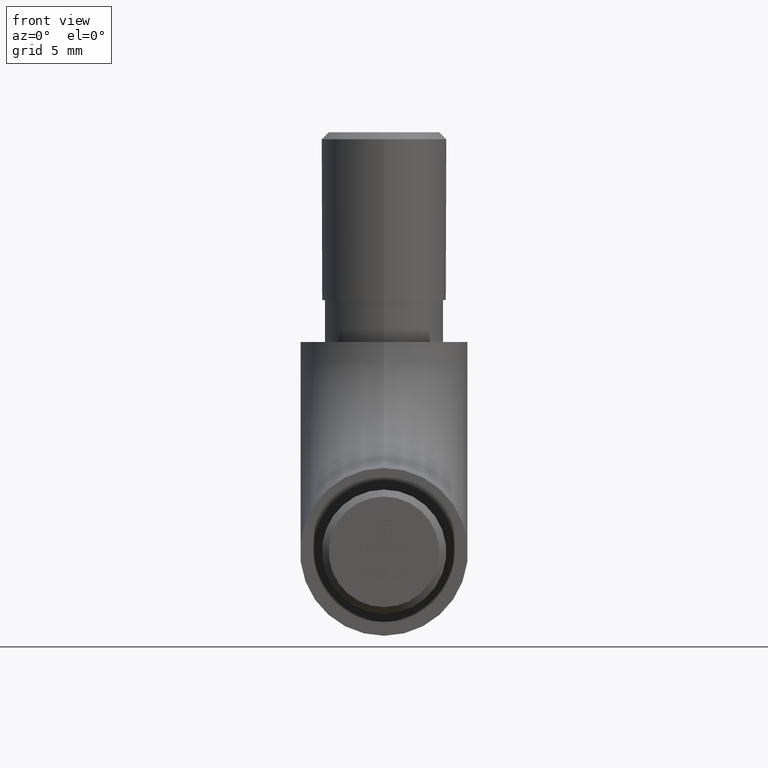
[diagram: clean part render]
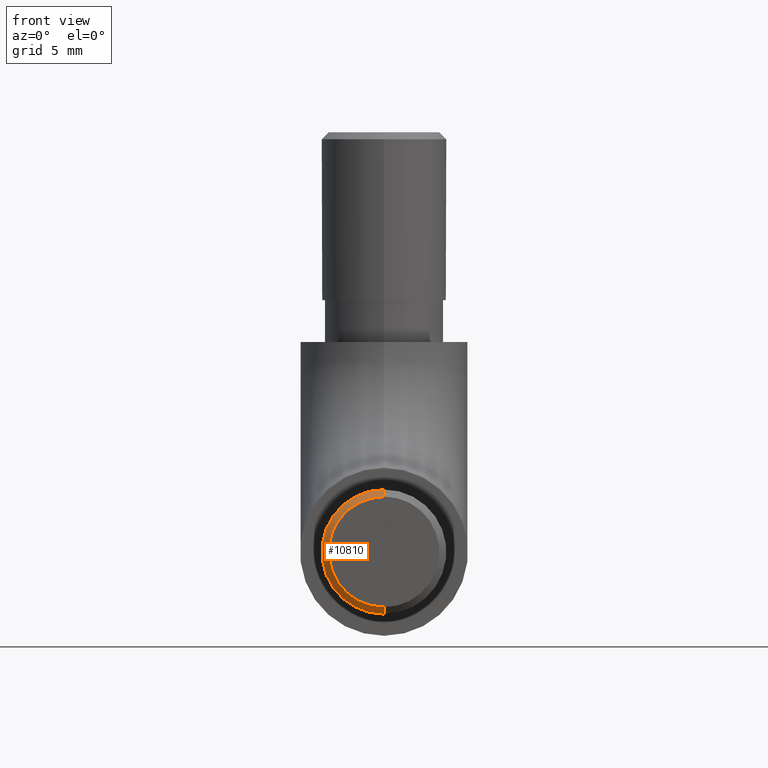
[diagram: same view with one face highlighted and labeled with its STEP entity id]
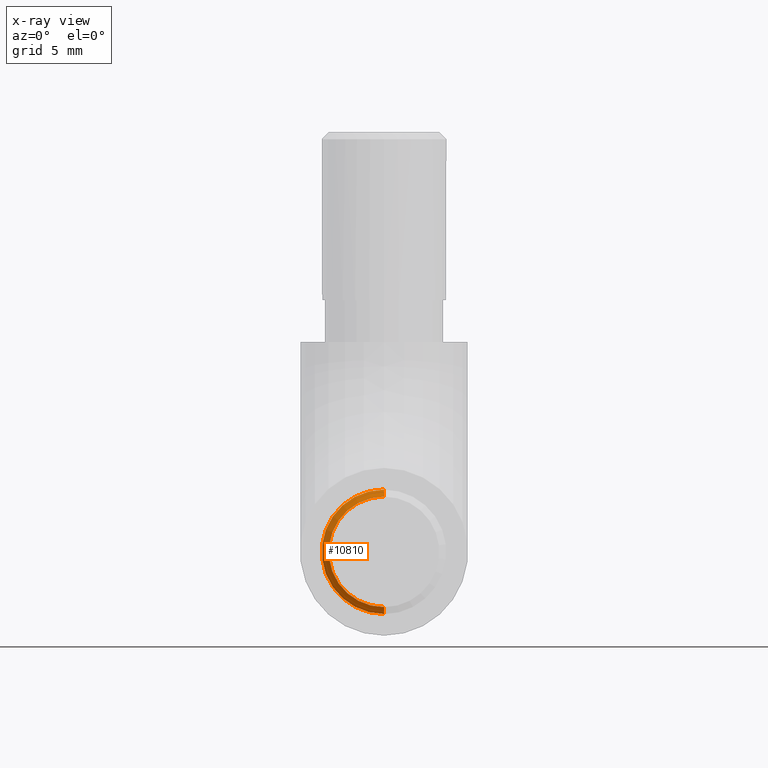
[diagram: x-ray of the same camera — body ghosted, the highlighted face saturated]
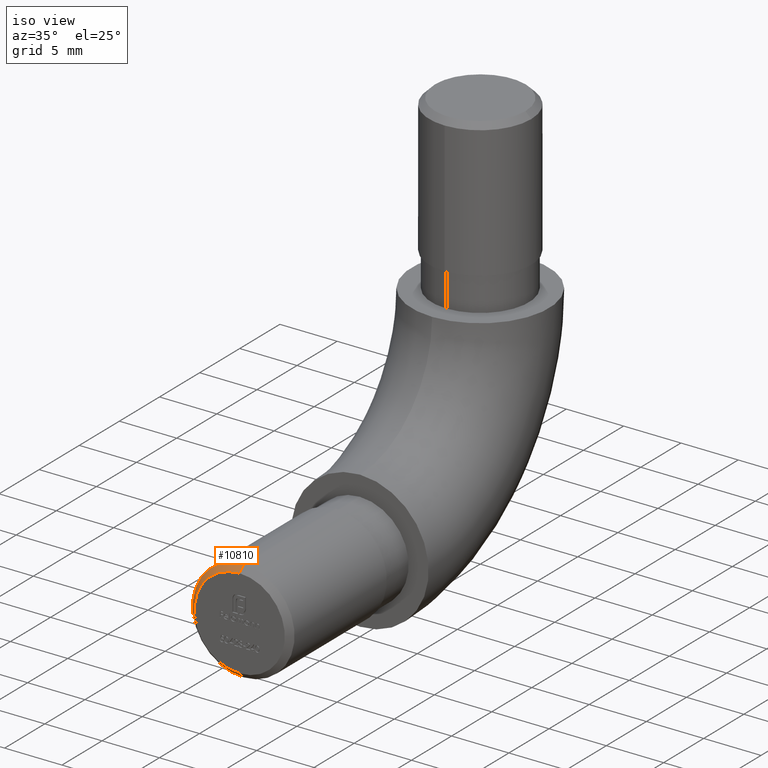
[diagram: same view with one face highlighted and labeled with its STEP entity id]
A machine part, front view. The second image highlights one B-rep face of the part: STEP entity #10810.
The next image is the same camera in x-ray: the body ghosted, the highlighted face saturated — about 0% of this face is hidden behind the body in this view.
A second angle (iso view) of the same face is appended — the face is thin or edge-on in the first view.
In plain terms, the highlighted conical surface has half-angle 45 deg.
Its self-contained STEP definition (entity closure, byte-faithful):
#8 = VERTEX_POINT ( 'NONE', #7614 ) ;
#37 = CARTESIAN_POINT ( 'NONE',  ( 0.000000000000000000, -15.00000000000000000, -1.836970198721029983E-15 ) ) ;
#87 = DIRECTION ( 'NONE',  ( 0.000000000000000000, 0.000000000000000000, 1.000000000000000000 ) ) ;
#856 = VERTEX_POINT ( 'NONE', #6616 ) ;
#888 = EDGE_CURVE ( 'NONE', #8, #13210, #15329, .T. ) ;
#1875 = CARTESIAN_POINT ( 'NONE',  ( 0.000000000000000000, -14.49999999999999822, -1.775737858763662409E-15 ) ) ;
#1965 = EDGE_CURVE ( 'NONE', #4988, #856, #6623, .T. ) ;
#2436 = ORIENTED_EDGE ( 'NONE', *, *, #888, .F. ) ;
#2591 = DIRECTION ( 'NONE',  ( 8.659560562354955045E-17, 0.7071067811865457964, -0.7071067811865492381 ) ) ;
#3255 = EDGE_CURVE ( 'NONE', #13210, #4988, #11585, .T. ) ;
#3562 = CONICAL_SURFACE ( 'NONE', #5475, 4.450000000000001066, 0.7853981633974509435 ) ;
#4629 = CARTESIAN_POINT ( 'NONE',  ( 0.000000000000000000, -14.49999999999999822, -1.775737858763662409E-15 ) ) ;
#4837 = CARTESIAN_POINT ( 'NONE',  ( 0.000000000000000000, -14.49999999999999822, 4.449999999999999289 ) ) ;
#4988 = VERTEX_POINT ( 'NONE', #5899 ) ;
#5412 = DIRECTION ( 'NONE',  ( -0.000000000000000000, 1.000000000000000000, 1.224646799147349263E-16 ) ) ;
#5475 = AXIS2_PLACEMENT_3D ( 'NONE', #1875, #5412, #12458 ) ;
#5899 = CARTESIAN_POINT ( 'NONE',  ( 5.449678256205723756E-16, -14.49999999999999822, -4.450000000000002842 ) ) ;
#6016 = CARTESIAN_POINT ( 'NONE',  ( 5.143516556418882928E-16, -15.00000000000000000, -3.949999999999999734 ) ) ;
#6041 = VECTOR ( 'NONE', #2591, 1000.000000000000000 ) ;
#6616 = CARTESIAN_POINT ( 'NONE',  ( 0.000000000000000000, -14.49999999999999822, 4.449999999999999289 ) ) ;
#6623 = CIRCLE ( 'NONE', #13393, 4.450000000000001066 ) ;
#6775 = ORIENTED_EDGE ( 'NONE', *, *, #3255, .F. ) ;
#7282 = DIRECTION ( 'NONE',  ( 0.000000000000000000, -1.000000000000000000, -1.224646799147353454E-16 ) ) ;
#7614 = CARTESIAN_POINT ( 'NONE',  ( 0.000000000000000000, -15.00000000000000000, 3.949999999999996181 ) ) ;
#7733 = FACE_OUTER_BOUND ( 'NONE', #10240, .T. ) ;
#8075 = ORIENTED_EDGE ( 'NONE', *, *, #1965, .F. ) ;
#8756 = CARTESIAN_POINT ( 'NONE',  ( 5.449678256205722770E-16, -14.49999999999999822, -4.450000000000002842 ) ) ;
#10240 = EDGE_LOOP ( 'NONE', ( #6775, #2436, #15229, #8075 ) ) ;
#10810 = ADVANCED_FACE ( 'NONE', ( #7733 ), #3562, .T. ) ;
#11376 = VECTOR ( 'NONE', #13351, 1000.000000000000114 ) ;
#11585 = LINE ( 'NONE', #8756, #6041 ) ;
#11605 = EDGE_CURVE ( 'NONE', #8, #856, #11742, .T. ) ;
#11742 = LINE ( 'NONE', #4837, #11376 ) ;
#12458 = DIRECTION ( 'NONE',  ( 0.000000000000000000, 0.000000000000000000, 1.000000000000000000 ) ) ;
#12492 = AXIS2_PLACEMENT_3D ( 'NONE', #37, #7282, #87 ) ;
#12935 = DIRECTION ( 'NONE',  ( -0.000000000000000000, 1.000000000000000000, 1.224646799147349263E-16 ) ) ;
#13210 = VERTEX_POINT ( 'NONE', #6016 ) ;
#13351 = DIRECTION ( 'NONE',  ( 0.000000000000000000, 0.7071067811865455743, 0.7071067811865493491 ) ) ;
#13393 = AXIS2_PLACEMENT_3D ( 'NONE', #4629, #12935, #14123 ) ;
#14123 = DIRECTION ( 'NONE',  ( 0.000000000000000000, 0.000000000000000000, 1.000000000000000000 ) ) ;
#15229 = ORIENTED_EDGE ( 'NONE', *, *, #11605, .T. ) ;
#15329 = CIRCLE ( 'NONE', #12492, 3.949999999999997957 ) ;